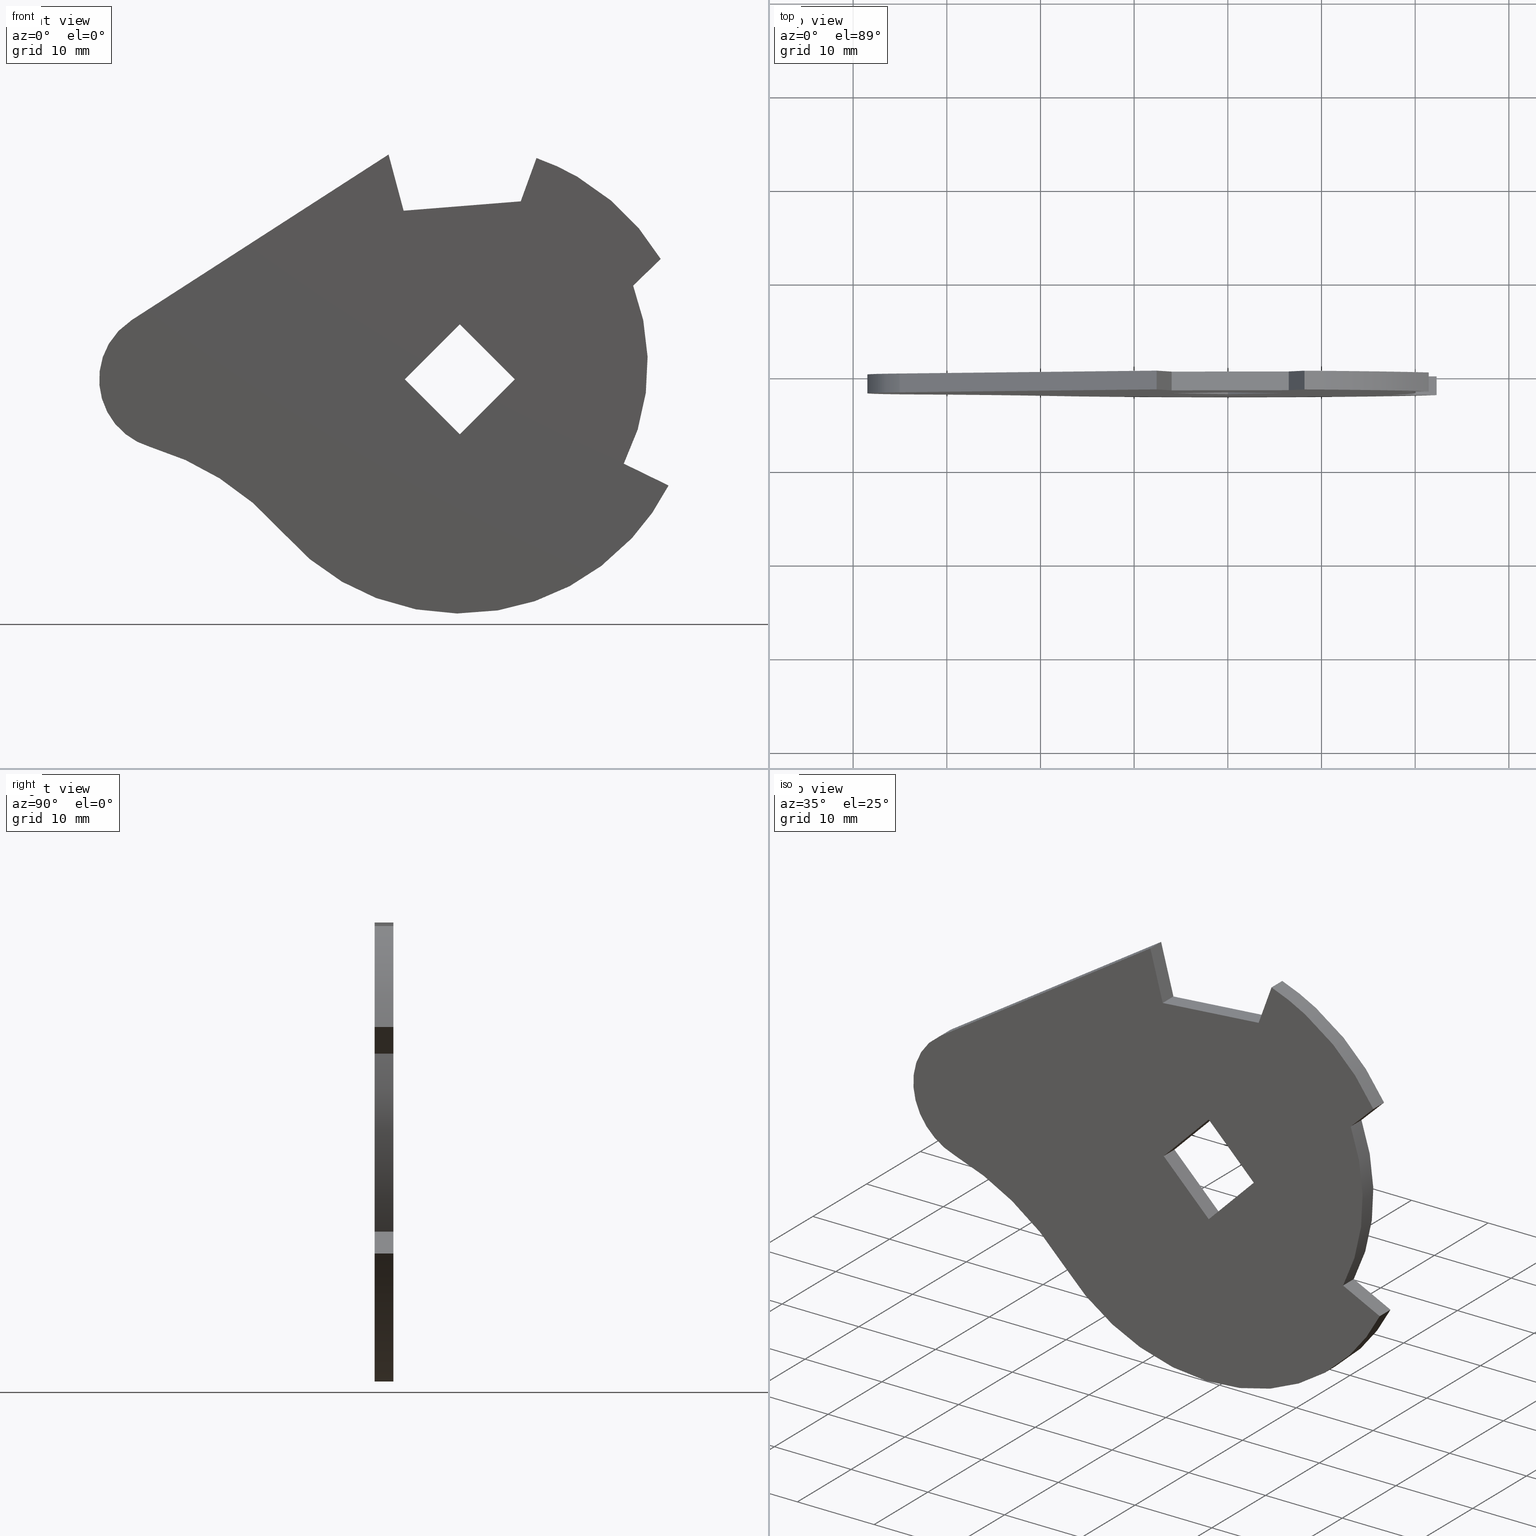
[diagram: canonical four-view strip — front | top / right | iso, engineering-drawing reading convention]
A machine part, canonical four-view strip (front | top / right | iso — engineering-drawing reading convention). The complete STEP part file that produces these views, byte-faithful:
ISO-10303-21;
HEADER;
/****************************************************************
 * Generated by software with PDE/Lib inside                    *
 * PDElib Version 4.4.1-0003, patched  Thursday August 19 11:58 *
 * International Technegroup Inc. (www.iti-oh.com)              *
 ****************************************************************/
FILE_DESCRIPTION((''),'2;1');
FILE_NAME('','2005-10-12T14:38:03',(''),(''),'','CADfix','');
FILE_SCHEMA(('AUTOMOTIVE_DESIGN'));
ENDSEC;
DATA;
#5=APPLICATION_CONTEXT('automotive design');
#6=APPLICATION_PROTOCOL_DEFINITION('Draft International Standard','automotive_design',1998,#5);
#7=PRODUCT_CONTEXT('None',#5,'mechanical');
#8=PRODUCT('cam','','None',(#7));
#9=PRODUCT_RELATED_PRODUCT_CATEGORY('part','description',(#8));
#10=PRODUCT_DEFINITION_FORMATION('None','None',#8);
#11=PRODUCT_DEFINITION_CONTEXT('part definition',#5,'design');
#12=PRODUCT_DEFINITION('None','None',#10,#11);
#18=(NAMED_UNIT(*)PLANE_ANGLE_UNIT()SI_UNIT($,.RADIAN.));
#19=DIMENSIONAL_EXPONENTS(0.0,0.0,0.0,0.0,0.0,0.0,0.0);
#20=PLANE_ANGLE_MEASURE_WITH_UNIT(PLANE_ANGLE_MEASURE(0.017453292500000),#18);
#24=(CONVERSION_BASED_UNIT('DEGREE',#20)NAMED_UNIT(#19)PLANE_ANGLE_UNIT());
#28=(NAMED_UNIT(*)SI_UNIT($,.STERADIAN.)SOLID_ANGLE_UNIT());
#32=(LENGTH_UNIT()NAMED_UNIT(*)SI_UNIT(.MILLI.,.METRE.));
#34=UNCERTAINTY_MEASURE_WITH_UNIT(LENGTH_MEASURE(0.001000000000000),#32,'DISTANCE_ACCURACY_VALUE','');
#36=(GEOMETRIC_REPRESENTATION_CONTEXT(3)GLOBAL_UNCERTAINTY_ASSIGNED_CONTEXT((#34))GLOBAL_UNIT_ASSIGNED_CONTEXT((#24,#28,#32))REPRESENTATION_CONTEXT('None','None'));
#37=AXIS2_PLACEMENT_3D('',#38,#39,#40);
#38=CARTESIAN_POINT('',(0.0,0.0,0.0));
#39=DIRECTION('',(0.0,0.0,1.0));
#40=DIRECTION('',(1.0,0.0,0.0));
#41=ADVANCED_BREP_SHAPE_REPRESENTATION('',(#37,#652),#36);
#42=PRODUCT_DEFINITION_SHAPE('','',#12);
#43=SHAPE_DEFINITION_REPRESENTATION(#42,#41);
#44=CARTESIAN_POINT('',(-41.535127349591320,0.0,26.447485419626780));
#45=CARTESIAN_POINT('',(25.319943420083320,0.0,26.447485419626780));
#46=CARTESIAN_POINT('',(-41.535127349591320,0.0,-27.446195734419138));
#47=CARTESIAN_POINT('',(25.319943420083320,0.0,-27.446195734419138));
#48=B_SPLINE_SURFACE_WITH_KNOTS('',1,1,((#44,#46),(#45,#47)),.UNSPECIFIED.,.F.,.F.,.U.,(2,2),(2,2),(0.0,66.855070769674640),(0.0,53.893681154045922),.UNSPECIFIED.);
#49=CARTESIAN_POINT('',(-18.912305335812551,0.0,-16.349430156952501));
#50=VERTEX_POINT('',#49);
#51=CARTESIAN_POINT('',(-33.121543283682698,0.0,-7.193419501498741));
#52=VERTEX_POINT('',#51);
#53=CARTESIAN_POINT('',(-18.912305335812551,0.0,-16.349430156952501));
#54=CARTESIAN_POINT('',(-24.672926693730464,0.0,-9.685671257501392));
#55=CARTESIAN_POINT('',(-33.121543283682698,0.0,-7.193419501498741));
#63=(BOUNDED_CURVE()B_SPLINE_CURVE(2,(#53,#54,#55),.UNSPECIFIED.,.F.,.U.)CURVE()GEOMETRIC_REPRESENTATION_ITEM()QUASI_UNIFORM_CURVE()RATIONAL_B_SPLINE_CURVE((1.0,0.959505779183390,1.0))REPRESENTATION_ITEM(''));
#64=EDGE_CURVE('',#50,#52,#63,.T.);
#65=ORIENTED_EDGE('',*,*,#64,.T.);
#66=CARTESIAN_POINT('',(-35.029268839974250,0.0,6.325740479597029));
#67=VERTEX_POINT('',#66);
#68=CARTESIAN_POINT('',(-35.029268839974250,0.0,6.325740479597032));
#69=CARTESIAN_POINT('',(-39.100513541276328,0.0,3.732095857407590));
#70=CARTESIAN_POINT('',(-38.426014233238163,0.0,-1.047765702046671));
#71=CARTESIAN_POINT('',(-37.751514925199984,0.0,-5.827627261500933));
#72=CARTESIAN_POINT('',(-33.121543283682698,0.0,-7.193419501498741));
#80=(BOUNDED_CURVE()B_SPLINE_CURVE(2,(#68,#69,#70,#71,#72),.UNSPECIFIED.,.F.,.U.)B_SPLINE_CURVE_WITH_KNOTS((3,2,3),(0.0,0.500000000000000,1.0),.UNSPECIFIED.)CURVE()GEOMETRIC_REPRESENTATION_ITEM()RATIONAL_B_SPLINE_CURVE((1.0,0.840886149082069,1.0,0.840886149082069,1.0))REPRESENTATION_ITEM(''));
#81=EDGE_CURVE('',#67,#52,#80,.T.);
#82=ORIENTED_EDGE('',*,*,#81,.F.);
#83=CARTESIAN_POINT('',(-7.607000000000000,0.0,24.0));
#84=VERTEX_POINT('',#83);
#85=CARTESIAN_POINT('',(-35.029268839974250,0.0,6.325740479597029));
#86=CARTESIAN_POINT('',(-7.607000000000000,0.0,24.0));
#87=QUASI_UNIFORM_CURVE('',1,(#85,#86),.UNSPECIFIED.,.F.,.U.);
#88=EDGE_CURVE('',#67,#84,#87,.T.);
#89=ORIENTED_EDGE('',*,*,#88,.T.);
#90=CARTESIAN_POINT('',(-6.0,0.0,18.0));
#91=VERTEX_POINT('',#90);
#92=CARTESIAN_POINT('',(-7.607000000000000,0.0,24.0));
#93=CARTESIAN_POINT('',(-6.0,0.0,18.0));
#94=QUASI_UNIFORM_CURVE('',1,(#92,#93),.UNSPECIFIED.,.F.,.U.);
#95=EDGE_CURVE('',#84,#91,#94,.T.);
#96=ORIENTED_EDGE('',*,*,#95,.T.);
#97=CARTESIAN_POINT('',(6.500000000000000,0.0,19.0));
#98=VERTEX_POINT('',#97);
#99=CARTESIAN_POINT('',(-6.0,0.0,18.0));
#100=CARTESIAN_POINT('',(6.500000000000000,0.0,19.0));
#101=QUASI_UNIFORM_CURVE('',1,(#99,#100),.UNSPECIFIED.,.F.,.U.);
#102=EDGE_CURVE('',#91,#98,#101,.T.);
#103=ORIENTED_EDGE('',*,*,#102,.T.);
#104=CARTESIAN_POINT('',(8.182980201324261,0.0,23.622845616579198));
#105=VERTEX_POINT('',#104);
#106=CARTESIAN_POINT('',(6.500000000000000,0.0,19.0));
#107=CARTESIAN_POINT('',(8.182980201324261,0.0,23.622845616579198));
#108=QUASI_UNIFORM_CURVE('',1,(#106,#107),.UNSPECIFIED.,.F.,.U.);
#109=EDGE_CURVE('',#98,#105,#108,.T.);
#110=ORIENTED_EDGE('',*,*,#109,.T.);
#111=CARTESIAN_POINT('',(21.447462022705601,0.0,12.845480636574161));
#112=VERTEX_POINT('',#111);
#113=CARTESIAN_POINT('',(21.447462022705590,0.0,12.845480636574150));
#114=CARTESIAN_POINT('',(16.775225539792963,0.0,20.646482199960836));
#115=CARTESIAN_POINT('',(8.182980201324261,0.0,23.622845616579209));
#123=(BOUNDED_CURVE()B_SPLINE_CURVE(2,(#113,#114,#115),.UNSPECIFIED.,.F.,.U.)CURVE()GEOMETRIC_REPRESENTATION_ITEM()QUASI_UNIFORM_CURVE()RATIONAL_B_SPLINE_CURVE((1.0,0.939766338213495,1.0))REPRESENTATION_ITEM(''));
#124=EDGE_CURVE('',#112,#105,#123,.T.);
#125=ORIENTED_EDGE('',*,*,#124,.F.);
#126=CARTESIAN_POINT('',(18.500357144043949,0.0,10.000344786956999));
#127=VERTEX_POINT('',#126);
#128=CARTESIAN_POINT('',(21.447462022705601,0.0,12.845480636574161));
#129=CARTESIAN_POINT('',(18.500357144043949,0.0,10.000344786956999));
#130=QUASI_UNIFORM_CURVE('',1,(#128,#129),.UNSPECIFIED.,.F.,.U.);
#131=EDGE_CURVE('',#112,#127,#130,.T.);
#132=ORIENTED_EDGE('',*,*,#131,.T.);
#133=CARTESIAN_POINT('',(17.500414805350200,0.0,-9.000202269632389));
#134=VERTEX_POINT('',#133);
#135=CARTESIAN_POINT('',(17.500414805350200,0.0,-9.000202269632394));
#136=CARTESIAN_POINT('',(22.241226133301584,0.0,0.276888441157541));
#137=CARTESIAN_POINT('',(18.500357144043939,0.0,10.000344786956990));
#145=(BOUNDED_CURVE()B_SPLINE_CURVE(2,(#135,#136,#137),.UNSPECIFIED.,.F.,.U.)CURVE()GEOMETRIC_REPRESENTATION_ITEM()QUASI_UNIFORM_CURVE()RATIONAL_B_SPLINE_CURVE((1.0,0.913150525690982,1.0))REPRESENTATION_ITEM(''));
#146=EDGE_CURVE('',#134,#127,#145,.T.);
#147=ORIENTED_EDGE('',*,*,#146,.F.);
#148=CARTESIAN_POINT('',(22.283837975185001,0.0,-11.332720992581740));
#149=VERTEX_POINT('',#148);
#150=CARTESIAN_POINT('',(17.500414805350200,0.0,-9.000202269632389));
#151=CARTESIAN_POINT('',(22.283837975185001,0.0,-11.332720992581740));
#152=QUASI_UNIFORM_CURVE('',1,(#150,#151),.UNSPECIFIED.,.F.,.U.);
#153=EDGE_CURVE('',#134,#149,#152,.T.);
#154=ORIENTED_EDGE('',*,*,#153,.T.);
#155=CARTESIAN_POINT('',(-18.912305335812562,0.0,-16.349430156952501));
#156=CARTESIAN_POINT('',(-10.200774324168949,0.0,-26.426735799385476));
#157=CARTESIAN_POINT('',(3.022309094434244,0.0,-24.816479148257720));
#158=CARTESIAN_POINT('',(16.245392513037434,0.0,-23.206222497129971));
#159=CARTESIAN_POINT('',(22.283837975185001,0.0,-11.332720992581750));
#167=(BOUNDED_CURVE()B_SPLINE_CURVE(2,(#155,#156,#157,#158,#159),.UNSPECIFIED.,.F.,.U.)B_SPLINE_CURVE_WITH_KNOTS((3,2,3),(0.0,0.500000000000000,1.0),.UNSPECIFIED.)CURVE()GEOMETRIC_REPRESENTATION_ITEM()RATIONAL_B_SPLINE_CURVE((1.0,0.882534954793417,1.0,0.882534954793417,1.0))REPRESENTATION_ITEM(''));
#168=EDGE_CURVE('',#50,#149,#167,.T.);
#169=ORIENTED_EDGE('',*,*,#168,.F.);
#170=EDGE_LOOP('',(#65,#82,#89,#96,#103,#110,#125,#132,#147,#154,#169));
#171=FACE_OUTER_BOUND('',#170,.T.);
#172=CARTESIAN_POINT('',(0.0,0.0,-5.868999999999900));
#173=VERTEX_POINT('',#172);
#174=CARTESIAN_POINT('',(-5.869000000000000,0.0,0.0));
#175=VERTEX_POINT('',#174);
#176=CARTESIAN_POINT('',(0.0,0.0,-5.868999999999900));
#177=CARTESIAN_POINT('',(-5.869000000000000,0.0,0.0));
#178=QUASI_UNIFORM_CURVE('',1,(#176,#177),.UNSPECIFIED.,.F.,.U.);
#179=EDGE_CURVE('',#173,#175,#178,.T.);
#180=ORIENTED_EDGE('',*,*,#179,.F.);
#181=CARTESIAN_POINT('',(5.869000000000000,0.0,0.0));
#182=VERTEX_POINT('',#181);
#183=CARTESIAN_POINT('',(5.869000000000000,0.0,0.0));
#184=CARTESIAN_POINT('',(0.0,0.0,-5.868999999999900));
#185=QUASI_UNIFORM_CURVE('',1,(#183,#184),.UNSPECIFIED.,.F.,.U.);
#186=EDGE_CURVE('',#182,#173,#185,.T.);
#187=ORIENTED_EDGE('',*,*,#186,.F.);
#188=CARTESIAN_POINT('',(0.0,0.0,5.869000000000100));
#189=VERTEX_POINT('',#188);
#190=CARTESIAN_POINT('',(0.0,0.0,5.869000000000100));
#191=CARTESIAN_POINT('',(5.869000000000000,0.0,0.0));
#192=QUASI_UNIFORM_CURVE('',1,(#190,#191),.UNSPECIFIED.,.F.,.U.);
#193=EDGE_CURVE('',#189,#182,#192,.T.);
#194=ORIENTED_EDGE('',*,*,#193,.F.);
#195=CARTESIAN_POINT('',(-5.869000000000000,0.0,0.0));
#196=CARTESIAN_POINT('',(0.0,0.0,5.869000000000100));
#197=QUASI_UNIFORM_CURVE('',1,(#195,#196),.UNSPECIFIED.,.F.,.U.);
#198=EDGE_CURVE('',#175,#189,#197,.T.);
#199=ORIENTED_EDGE('',*,*,#198,.F.);
#200=EDGE_LOOP('',(#180,#187,#194,#199));
#201=FACE_BOUND('',#200,.T.);
#202=ADVANCED_FACE('',(#171,#201),#48,.T.);
#203=CARTESIAN_POINT('',(-41.535127349591320,-2.0,26.447485419626780));
#204=CARTESIAN_POINT('',(25.319943420083320,-2.0,26.447485419626780));
#205=CARTESIAN_POINT('',(-41.535127349591320,-2.0,-27.446195734419138));
#206=CARTESIAN_POINT('',(25.319943420083320,-2.0,-27.446195734419138));
#207=B_SPLINE_SURFACE_WITH_KNOTS('',1,1,((#203,#205),(#204,#206)),.UNSPECIFIED.,.F.,.F.,.U.,(2,2),(2,2),(0.0,66.855070769674640),(0.0,53.893681154045922),.UNSPECIFIED.);
#208=CARTESIAN_POINT('',(-18.912305335812551,-2.0,-16.349430156952501));
#209=VERTEX_POINT('',#208);
#210=CARTESIAN_POINT('',(-33.121543283682698,-2.0,-7.193419501498741));
#211=VERTEX_POINT('',#210);
#212=CARTESIAN_POINT('',(-18.912305335812551,-2.0,-16.349430156952501));
#213=CARTESIAN_POINT('',(-24.672926693730464,-2.0,-9.685671257501392));
#214=CARTESIAN_POINT('',(-33.121543283682698,-2.0,-7.193419501498741));
#222=(BOUNDED_CURVE()B_SPLINE_CURVE(2,(#212,#213,#214),.UNSPECIFIED.,.F.,.U.)CURVE()GEOMETRIC_REPRESENTATION_ITEM()QUASI_UNIFORM_CURVE()RATIONAL_B_SPLINE_CURVE((1.0,0.959505779183390,1.0))REPRESENTATION_ITEM(''));
#223=EDGE_CURVE('',#209,#211,#222,.T.);
#224=ORIENTED_EDGE('',*,*,#223,.F.);
#225=CARTESIAN_POINT('',(22.283837975185001,-2.0,-11.332720992581740));
#226=VERTEX_POINT('',#225);
#227=CARTESIAN_POINT('',(-18.912305335812562,-2.0,-16.349430156952501));
#228=CARTESIAN_POINT('',(-10.200774324168949,-2.000000000000000,-26.426735799385476));
#229=CARTESIAN_POINT('',(3.022309094434244,-2.0,-24.816479148257720));
#230=CARTESIAN_POINT('',(16.245392513037434,-2.000000000000000,-23.206222497129971));
#231=CARTESIAN_POINT('',(22.283837975185001,-2.0,-11.332720992581750));
#239=(BOUNDED_CURVE()B_SPLINE_CURVE(2,(#227,#228,#229,#230,#231),.UNSPECIFIED.,.F.,.U.)B_SPLINE_CURVE_WITH_KNOTS((3,2,3),(0.0,0.500000000000000,1.0),.UNSPECIFIED.)CURVE()GEOMETRIC_REPRESENTATION_ITEM()RATIONAL_B_SPLINE_CURVE((1.0,0.882534954793417,1.0,0.882534954793417,1.0))REPRESENTATION_ITEM(''));
#240=EDGE_CURVE('',#209,#226,#239,.T.);
#241=ORIENTED_EDGE('',*,*,#240,.T.);
#242=CARTESIAN_POINT('',(17.500414805350200,-2.0,-9.000202269632389));
#243=VERTEX_POINT('',#242);
#244=CARTESIAN_POINT('',(17.500414805350200,-2.0,-9.000202269632389));
#245=CARTESIAN_POINT('',(22.283837975185001,-2.0,-11.332720992581740));
#246=QUASI_UNIFORM_CURVE('',1,(#244,#245),.UNSPECIFIED.,.F.,.U.);
#247=EDGE_CURVE('',#243,#226,#246,.T.);
#248=ORIENTED_EDGE('',*,*,#247,.F.);
#249=CARTESIAN_POINT('',(18.500357144043949,-2.0,10.000344786956999));
#250=VERTEX_POINT('',#249);
#251=CARTESIAN_POINT('',(17.500414805350200,-2.0,-9.000202269632394));
#252=CARTESIAN_POINT('',(22.241226133301584,-2.000000000000000,0.276888441157541));
#253=CARTESIAN_POINT('',(18.500357144043939,-2.0,10.000344786956990));
#261=(BOUNDED_CURVE()B_SPLINE_CURVE(2,(#251,#252,#253),.UNSPECIFIED.,.F.,.U.)CURVE()GEOMETRIC_REPRESENTATION_ITEM()QUASI_UNIFORM_CURVE()RATIONAL_B_SPLINE_CURVE((1.0,0.913150525690982,1.0))REPRESENTATION_ITEM(''));
#262=EDGE_CURVE('',#243,#250,#261,.T.);
#263=ORIENTED_EDGE('',*,*,#262,.T.);
#264=CARTESIAN_POINT('',(21.447462022705601,-2.0,12.845480636574161));
#265=VERTEX_POINT('',#264);
#266=CARTESIAN_POINT('',(21.447462022705601,-2.0,12.845480636574161));
#267=CARTESIAN_POINT('',(18.500357144043949,-2.0,10.000344786956999));
#268=QUASI_UNIFORM_CURVE('',1,(#266,#267),.UNSPECIFIED.,.F.,.U.);
#269=EDGE_CURVE('',#265,#250,#268,.T.);
#270=ORIENTED_EDGE('',*,*,#269,.F.);
#271=CARTESIAN_POINT('',(8.182980201324261,-2.0,23.622845616579198));
#272=VERTEX_POINT('',#271);
#273=CARTESIAN_POINT('',(21.447462022705590,-2.0,12.845480636574150));
#274=CARTESIAN_POINT('',(16.775225539792963,-2.000000000000000,20.646482199960836));
#275=CARTESIAN_POINT('',(8.182980201324261,-2.0,23.622845616579209));
#283=(BOUNDED_CURVE()B_SPLINE_CURVE(2,(#273,#274,#275),.UNSPECIFIED.,.F.,.U.)CURVE()GEOMETRIC_REPRESENTATION_ITEM()QUASI_UNIFORM_CURVE()RATIONAL_B_SPLINE_CURVE((1.0,0.939766338213495,1.0))REPRESENTATION_ITEM(''));
#284=EDGE_CURVE('',#265,#272,#283,.T.);
#285=ORIENTED_EDGE('',*,*,#284,.T.);
#286=CARTESIAN_POINT('',(6.500000000000000,-2.0,19.0));
#287=VERTEX_POINT('',#286);
#288=CARTESIAN_POINT('',(6.500000000000000,-2.0,19.0));
#289=CARTESIAN_POINT('',(8.182980201324261,-2.0,23.622845616579198));
#290=QUASI_UNIFORM_CURVE('',1,(#288,#289),.UNSPECIFIED.,.F.,.U.);
#291=EDGE_CURVE('',#287,#272,#290,.T.);
#292=ORIENTED_EDGE('',*,*,#291,.F.);
#293=CARTESIAN_POINT('',(-6.0,-2.0,18.0));
#294=VERTEX_POINT('',#293);
#295=CARTESIAN_POINT('',(-6.0,-2.0,18.0));
#296=CARTESIAN_POINT('',(6.500000000000000,-2.0,19.0));
#297=QUASI_UNIFORM_CURVE('',1,(#295,#296),.UNSPECIFIED.,.F.,.U.);
#298=EDGE_CURVE('',#294,#287,#297,.T.);
#299=ORIENTED_EDGE('',*,*,#298,.F.);
#300=CARTESIAN_POINT('',(-7.607000000000000,-2.0,24.0));
#301=VERTEX_POINT('',#300);
#302=CARTESIAN_POINT('',(-7.607000000000000,-2.0,24.0));
#303=CARTESIAN_POINT('',(-6.0,-2.0,18.0));
#304=QUASI_UNIFORM_CURVE('',1,(#302,#303),.UNSPECIFIED.,.F.,.U.);
#305=EDGE_CURVE('',#301,#294,#304,.T.);
#306=ORIENTED_EDGE('',*,*,#305,.F.);
#307=CARTESIAN_POINT('',(-35.029268839974250,-2.0,6.325740479597029));
#308=VERTEX_POINT('',#307);
#309=CARTESIAN_POINT('',(-35.029268839974250,-2.0,6.325740479597029));
#310=CARTESIAN_POINT('',(-7.607000000000000,-2.0,24.0));
#311=QUASI_UNIFORM_CURVE('',1,(#309,#310),.UNSPECIFIED.,.F.,.U.);
#312=EDGE_CURVE('',#308,#301,#311,.T.);
#313=ORIENTED_EDGE('',*,*,#312,.F.);
#314=CARTESIAN_POINT('',(-35.029268839974250,-2.0,6.325740479597032));
#315=CARTESIAN_POINT('',(-39.100513541276328,-2.000000000000000,3.732095857407590));
#316=CARTESIAN_POINT('',(-38.426014233238163,-2.0,-1.047765702046671));
#317=CARTESIAN_POINT('',(-37.751514925199984,-2.000000000000000,-5.827627261500933));
#318=CARTESIAN_POINT('',(-33.121543283682698,-2.0,-7.193419501498741));
#326=(BOUNDED_CURVE()B_SPLINE_CURVE(2,(#314,#315,#316,#317,#318),.UNSPECIFIED.,.F.,.U.)B_SPLINE_CURVE_WITH_KNOTS((3,2,3),(0.0,0.500000000000000,1.0),.UNSPECIFIED.)CURVE()GEOMETRIC_REPRESENTATION_ITEM()RATIONAL_B_SPLINE_CURVE((1.0,0.840886149082069,1.0,0.840886149082069,1.0))REPRESENTATION_ITEM(''));
#327=EDGE_CURVE('',#308,#211,#326,.T.);
#328=ORIENTED_EDGE('',*,*,#327,.T.);
#329=EDGE_LOOP('',(#224,#241,#248,#263,#270,#285,#292,#299,#306,#313,#328));
#330=FACE_OUTER_BOUND('',#329,.T.);
#331=CARTESIAN_POINT('',(0.0,-2.0,-5.868999999999900));
#332=VERTEX_POINT('',#331);
#333=CARTESIAN_POINT('',(-5.869000000000000,-2.0,0.0));
#334=VERTEX_POINT('',#333);
#335=CARTESIAN_POINT('',(0.0,-2.0,-5.868999999999900));
#336=CARTESIAN_POINT('',(-5.869000000000000,-2.0,0.0));
#337=QUASI_UNIFORM_CURVE('',1,(#335,#336),.UNSPECIFIED.,.F.,.U.);
#338=EDGE_CURVE('',#332,#334,#337,.T.);
#339=ORIENTED_EDGE('',*,*,#338,.T.);
#340=CARTESIAN_POINT('',(0.0,-2.0,5.869000000000100));
#341=VERTEX_POINT('',#340);
#342=CARTESIAN_POINT('',(-5.869000000000000,-2.0,0.0));
#343=CARTESIAN_POINT('',(0.0,-2.0,5.869000000000100));
#344=QUASI_UNIFORM_CURVE('',1,(#342,#343),.UNSPECIFIED.,.F.,.U.);
#345=EDGE_CURVE('',#334,#341,#344,.T.);
#346=ORIENTED_EDGE('',*,*,#345,.T.);
#347=CARTESIAN_POINT('',(5.869000000000000,-2.0,0.0));
#348=VERTEX_POINT('',#347);
#349=CARTESIAN_POINT('',(0.0,-2.0,5.869000000000100));
#350=CARTESIAN_POINT('',(5.869000000000000,-2.0,0.0));
#351=QUASI_UNIFORM_CURVE('',1,(#349,#350),.UNSPECIFIED.,.F.,.U.);
#352=EDGE_CURVE('',#341,#348,#351,.T.);
#353=ORIENTED_EDGE('',*,*,#352,.T.);
#354=CARTESIAN_POINT('',(5.869000000000000,-2.0,0.0));
#355=CARTESIAN_POINT('',(0.0,-2.0,-5.868999999999900));
#356=QUASI_UNIFORM_CURVE('',1,(#354,#355),.UNSPECIFIED.,.F.,.U.);
#357=EDGE_CURVE('',#348,#332,#356,.T.);
#358=ORIENTED_EDGE('',*,*,#357,.T.);
#359=EDGE_LOOP('',(#339,#346,#353,#358));
#360=FACE_BOUND('',#359,.T.);
#361=ADVANCED_FACE('',(#330,#360),#207,.F.);
#362=CARTESIAN_POINT('',(-19.054258406682859,-2.050000000000000,-16.183766429837441));
#363=CARTESIAN_POINT('',(-19.054258406682859,0.051250000000000,-16.183766429837441));
#364=CARTESIAN_POINT('',(6.845057274677663,-2.050000000000000,-46.677374041093017));
#365=CARTESIAN_POINT('',(6.845057274677663,0.051250000000000,-46.677374041093017));
#366=CARTESIAN_POINT('',(22.899017529566780,-2.050000000000000,-10.031705565181269));
#367=CARTESIAN_POINT('',(22.899017529566780,0.051250000000000,-10.031705565181269));
#375=(BOUNDED_SURFACE()B_SPLINE_SURFACE(1,2,((#362,#364,#366),(#363,#365,#367)),.UNSPECIFIED.,.F.,.F.,.U.)B_SPLINE_SURFACE_WITH_KNOTS((2,2),(3,3),(0.0,2.101250000000000),(0.0,55.430308294917893),.UNSPECIFIED.)GEOMETRIC_REPRESENTATION_ITEM()RATIONAL_B_SPLINE_SURFACE(((1.0,0.529919264233205,1.0),(1.0,0.529919264233205,1.0)))REPRESENTATION_ITEM('')SURFACE());
#376=ORIENTED_EDGE('',*,*,#168,.T.);
#377=CARTESIAN_POINT('',(22.283837975185001,-2.0,-11.332720992581740));
#378=CARTESIAN_POINT('',(22.283837975185001,0.0,-11.332720992581740));
#379=QUASI_UNIFORM_CURVE('',1,(#377,#378),.UNSPECIFIED.,.F.,.U.);
#380=EDGE_CURVE('',#226,#149,#379,.T.);
#381=ORIENTED_EDGE('',*,*,#380,.F.);
#382=ORIENTED_EDGE('',*,*,#240,.F.);
#383=CARTESIAN_POINT('',(-18.912305335812551,-2.0,-16.349430156952501));
#384=CARTESIAN_POINT('',(-18.912305335812551,0.0,-16.349430156952501));
#385=QUASI_UNIFORM_CURVE('',1,(#383,#384),.UNSPECIFIED.,.F.,.U.);
#386=EDGE_CURVE('',#209,#50,#385,.T.);
#387=ORIENTED_EDGE('',*,*,#386,.T.);
#388=EDGE_LOOP('',(#376,#381,#382,#387));
#389=FACE_OUTER_BOUND('',#388,.T.);
#390=ADVANCED_FACE('',(#389),#375,.T.);
#391=CARTESIAN_POINT('',(-6.162156538624739,-2.099899996123612,-0.293156538624744));
#392=CARTESIAN_POINT('',(0.293156696043588,-2.099899996123612,6.162156696043692));
#393=CARTESIAN_POINT('',(-6.162156538624739,0.099900049767792,-0.293156538624744));
#394=CARTESIAN_POINT('',(0.293156696043588,0.099900049767792,6.162156696043691));
#395=B_SPLINE_SURFACE_WITH_KNOTS('',1,1,((#391,#393),(#392,#394)),.UNSPECIFIED.,.F.,.F.,.U.,(2,2),(2,2),(0.0,9.129191525834559),(0.0,2.199800045891404),.UNSPECIFIED.);
#396=ORIENTED_EDGE('',*,*,#198,.T.);
#397=CARTESIAN_POINT('',(0.0,-2.0,5.869000000000100));
#398=CARTESIAN_POINT('',(0.0,0.0,5.869000000000100));
#399=QUASI_UNIFORM_CURVE('',1,(#397,#398),.UNSPECIFIED.,.F.,.U.);
#400=EDGE_CURVE('',#341,#189,#399,.T.);
#401=ORIENTED_EDGE('',*,*,#400,.F.);
#402=ORIENTED_EDGE('',*,*,#345,.F.);
#403=CARTESIAN_POINT('',(-5.869000000000000,-2.0,0.0));
#404=CARTESIAN_POINT('',(-5.869000000000000,0.0,0.0));
#405=QUASI_UNIFORM_CURVE('',1,(#403,#404),.UNSPECIFIED.,.F.,.U.);
#406=EDGE_CURVE('',#334,#175,#405,.T.);
#407=ORIENTED_EDGE('',*,*,#406,.T.);
#408=EDGE_LOOP('',(#396,#401,#402,#407));
#409=FACE_OUTER_BOUND('',#408,.T.);
#410=ADVANCED_FACE('',(#409),#395,.F.);
#411=CARTESIAN_POINT('',(-0.293156538624740,-2.099899996123612,6.162156538624843));
#412=CARTESIAN_POINT('',(6.162156696043594,-2.099899996123612,-0.293156696043582));
#413=CARTESIAN_POINT('',(-0.293156538624740,0.099900049767792,6.162156538624843));
#414=CARTESIAN_POINT('',(6.162156696043594,0.099900049767792,-0.293156696043582));
#415=B_SPLINE_SURFACE_WITH_KNOTS('',1,1,((#411,#413),(#412,#414)),.UNSPECIFIED.,.F.,.F.,.U.,(2,2),(2,2),(0.0,9.129191525834557),(0.0,2.199800045891404),.UNSPECIFIED.);
#416=ORIENTED_EDGE('',*,*,#193,.T.);
#417=CARTESIAN_POINT('',(5.869000000000000,-2.0,0.0));
#418=CARTESIAN_POINT('',(5.869000000000000,0.0,0.0));
#419=QUASI_UNIFORM_CURVE('',1,(#417,#418),.UNSPECIFIED.,.F.,.U.);
#420=EDGE_CURVE('',#348,#182,#419,.T.);
#421=ORIENTED_EDGE('',*,*,#420,.F.);
#422=ORIENTED_EDGE('',*,*,#352,.F.);
#423=ORIENTED_EDGE('',*,*,#400,.T.);
#424=EDGE_LOOP('',(#416,#421,#422,#423));
#425=FACE_OUTER_BOUND('',#424,.T.);
#426=ADVANCED_FACE('',(#425),#415,.F.);
#427=CARTESIAN_POINT('',(6.162156538624739,-2.099899996123612,0.293156538624733));
#428=CARTESIAN_POINT('',(-0.293156696043595,-2.099899996123612,-6.162156696043473));
#429=CARTESIAN_POINT('',(6.162156538624739,0.099900049767792,0.293156538624733));
#430=CARTESIAN_POINT('',(-0.293156696043595,0.099900049767792,-6.162156696043473));
#431=B_SPLINE_SURFACE_WITH_KNOTS('',1,1,((#427,#429),(#428,#430)),.UNSPECIFIED.,.F.,.F.,.U.,(2,2),(2,2),(0.0,9.129191525834402),(0.0,2.199800045891404),.UNSPECIFIED.);
#432=ORIENTED_EDGE('',*,*,#186,.T.);
#433=CARTESIAN_POINT('',(0.0,-2.0,-5.868999999999900));
#434=CARTESIAN_POINT('',(0.0,0.0,-5.868999999999900));
#435=QUASI_UNIFORM_CURVE('',1,(#433,#434),.UNSPECIFIED.,.F.,.U.);
#436=EDGE_CURVE('',#332,#173,#435,.T.);
#437=ORIENTED_EDGE('',*,*,#436,.F.);
#438=ORIENTED_EDGE('',*,*,#357,.F.);
#439=ORIENTED_EDGE('',*,*,#420,.T.);
#440=EDGE_LOOP('',(#432,#437,#438,#439));
#441=FACE_OUTER_BOUND('',#440,.T.);
#442=ADVANCED_FACE('',(#441),#431,.F.);
#443=CARTESIAN_POINT('',(0.293156538624740,-2.099899996123612,-6.162156538624636));
#444=CARTESIAN_POINT('',(-6.162156696043588,-2.099899996123612,0.293156696043581));
#445=CARTESIAN_POINT('',(0.293156538624740,0.099900049767792,-6.162156538624636));
#446=CARTESIAN_POINT('',(-6.162156696043588,0.099900049767792,0.293156696043581));
#447=B_SPLINE_SURFACE_WITH_KNOTS('',1,1,((#443,#445),(#444,#446)),.UNSPECIFIED.,.F.,.F.,.U.,(2,2),(2,2),(0.0,9.129191525834406),(0.0,2.199800045891404),.UNSPECIFIED.);
#448=ORIENTED_EDGE('',*,*,#179,.T.);
#449=ORIENTED_EDGE('',*,*,#406,.F.);
#450=ORIENTED_EDGE('',*,*,#338,.F.);
#451=ORIENTED_EDGE('',*,*,#436,.T.);
#452=EDGE_LOOP('',(#448,#449,#450,#451));
#453=FACE_OUTER_BOUND('',#452,.T.);
#454=ADVANCED_FACE('',(#453),#447,.F.);
#455=CARTESIAN_POINT('',(17.261482019027770,-2.099899996123612,-8.883692569813647));
#456=CARTESIAN_POINT('',(22.522770120000381,-2.099899996123612,-11.449230379585369));
#457=CARTESIAN_POINT('',(17.261482019027770,0.099900049767792,-8.883692569813647));
#458=CARTESIAN_POINT('',(22.522770120000381,0.099900049767792,-11.449230379585369));
#459=B_SPLINE_SURFACE_WITH_KNOTS('',1,1,((#455,#457),(#456,#458)),.UNSPECIFIED.,.F.,.F.,.U.,(2,2),(2,2),(0.0,5.853472194757930),(0.0,2.199800045891404),.UNSPECIFIED.);
#460=ORIENTED_EDGE('',*,*,#153,.F.);
#461=CARTESIAN_POINT('',(17.500414805350200,-2.0,-9.000202269632389));
#462=CARTESIAN_POINT('',(17.500414805350200,0.0,-9.000202269632389));
#463=QUASI_UNIFORM_CURVE('',1,(#461,#462),.UNSPECIFIED.,.F.,.U.);
#464=EDGE_CURVE('',#243,#134,#463,.T.);
#465=ORIENTED_EDGE('',*,*,#464,.F.);
#466=ORIENTED_EDGE('',*,*,#247,.T.);
#467=ORIENTED_EDGE('',*,*,#380,.T.);
#468=EDGE_LOOP('',(#460,#465,#466,#467));
#469=FACE_OUTER_BOUND('',#468,.T.);
#470=ADVANCED_FACE('',(#469),#459,.T.);
#471=CARTESIAN_POINT('',(17.054810097271481,-2.050000000000000,-9.830390841335756));
#472=CARTESIAN_POINT('',(17.054810097271481,0.051250000000000,-9.830390841335756));
#473=CARTESIAN_POINT('',(22.733495384954111,-2.049999999999999,0.255320408776751));
#474=CARTESIAN_POINT('',(22.733495384954111,0.051250000000000,0.255320408776751));
#475=CARTESIAN_POINT('',(18.141274460681064,-2.049999999999999,10.879846045239677));
#476=CARTESIAN_POINT('',(18.141274460681064,0.051250000000000,10.879846045239677));
#484=(BOUNDED_SURFACE()B_SPLINE_SURFACE(1,2,((#471,#473,#475),(#472,#474,#476)),.UNSPECIFIED.,.F.,.F.,.U.)B_SPLINE_SURFACE_WITH_KNOTS((2,2),(3,3),(0.0,2.101250000000000),(0.0,21.877565981152809),.UNSPECIFIED.)GEOMETRIC_REPRESENTATION_ITEM()RATIONAL_B_SPLINE_SURFACE(((0.999677684304771,0.891767126944813,0.991159725809228),(0.999677684304771,0.891767126944813,0.991159725809228)))REPRESENTATION_ITEM('')SURFACE());
#485=ORIENTED_EDGE('',*,*,#146,.T.);
#486=CARTESIAN_POINT('',(18.500357144043949,-2.0,10.000344786956999));
#487=CARTESIAN_POINT('',(18.500357144043949,0.0,10.000344786956999));
#488=QUASI_UNIFORM_CURVE('',1,(#486,#487),.UNSPECIFIED.,.F.,.U.);
#489=EDGE_CURVE('',#250,#127,#488,.T.);
#490=ORIENTED_EDGE('',*,*,#489,.F.);
#491=ORIENTED_EDGE('',*,*,#262,.F.);
#492=ORIENTED_EDGE('',*,*,#464,.T.);
#493=EDGE_LOOP('',(#485,#490,#491,#492));
#494=FACE_OUTER_BOUND('',#493,.T.);
#495=ADVANCED_FACE('',(#494),#484,.T.);
#496=CARTESIAN_POINT('',(21.594670099339869,-2.099899996123612,12.987595353704810));
#497=CARTESIAN_POINT('',(18.353149172806351,-2.099899996123612,9.858230171576341));
#498=CARTESIAN_POINT('',(21.594670099339869,0.099900049767792,12.987595353704810));
#499=CARTESIAN_POINT('',(18.353149172806351,0.099900049767792,9.858230171576341));
#500=B_SPLINE_SURFACE_WITH_KNOTS('',1,1,((#496,#498),(#497,#499)),.UNSPECIFIED.,.F.,.F.,.U.,(2,2),(2,2),(0.0,4.505594784295705),(0.0,2.199800045891404),.UNSPECIFIED.);
#501=ORIENTED_EDGE('',*,*,#131,.F.);
#502=CARTESIAN_POINT('',(21.447462022705601,-2.0,12.845480636574161));
#503=CARTESIAN_POINT('',(21.447462022705601,0.0,12.845480636574161));
#504=QUASI_UNIFORM_CURVE('',1,(#502,#503),.UNSPECIFIED.,.F.,.U.);
#505=EDGE_CURVE('',#265,#112,#504,.T.);
#506=ORIENTED_EDGE('',*,*,#505,.F.);
#507=ORIENTED_EDGE('',*,*,#269,.T.);
#508=ORIENTED_EDGE('',*,*,#489,.T.);
#509=EDGE_LOOP('',(#501,#506,#507,#508));
#510=FACE_OUTER_BOUND('',#509,.T.);
#511=ADVANCED_FACE('',(#510),#500,.T.);
#512=CARTESIAN_POINT('',(21.781660936335580,-2.050000000000000,12.270258630302470));
#513=CARTESIAN_POINT('',(21.781660936335580,0.051250000000000,12.270258630302470));
#514=CARTESIAN_POINT('',(16.891311125709393,-2.050000000000000,20.951407467057390));
#515=CARTESIAN_POINT('',(16.891311125709393,0.051250000000000,20.951407467057390));
#516=CARTESIAN_POINT('',(7.370326010601203,-2.050000000000000,23.888873864153886));
#517=CARTESIAN_POINT('',(7.370326010601203,0.051250000000000,23.888873864153886));
#525=(BOUNDED_SURFACE()B_SPLINE_SURFACE(1,2,((#512,#514,#516),(#513,#515,#517)),.UNSPECIFIED.,.F.,.F.,.U.)B_SPLINE_SURFACE_WITH_KNOTS((2,2),(3,3),(0.0,2.101250000000000),(0.0,19.193447092224581),.UNSPECIFIED.)GEOMETRIC_REPRESENTATION_ITEM()RATIONAL_B_SPLINE_SURFACE(((1.0,0.924995322491587,0.991526371186921),(1.0,0.924995322491587,0.991526371186921)))REPRESENTATION_ITEM('')SURFACE());
#526=ORIENTED_EDGE('',*,*,#124,.T.);
#527=CARTESIAN_POINT('',(8.182980201324261,-2.0,23.622845616579198));
#528=CARTESIAN_POINT('',(8.182980201324261,0.0,23.622845616579198));
#529=QUASI_UNIFORM_CURVE('',1,(#527,#528),.UNSPECIFIED.,.F.,.U.);
#530=EDGE_CURVE('',#272,#105,#529,.T.);
#531=ORIENTED_EDGE('',*,*,#530,.F.);
#532=ORIENTED_EDGE('',*,*,#284,.F.);
#533=ORIENTED_EDGE('',*,*,#505,.T.);
#534=EDGE_LOOP('',(#526,#531,#532,#533));
#535=FACE_OUTER_BOUND('',#534,.T.);
#536=ADVANCED_FACE('',(#535),#525,.T.);
#537=CARTESIAN_POINT('',(6.415935154231368,-2.099899996123612,18.769088903443940));
#538=CARTESIAN_POINT('',(8.267044851481707,-2.099899996123612,23.853756175826270));
#539=CARTESIAN_POINT('',(6.415935154231368,0.099900049767792,18.769088903443940));
#540=CARTESIAN_POINT('',(8.267044851481707,0.099900049767792,23.853756175826270));
#541=B_SPLINE_SURFACE_WITH_KNOTS('',1,1,((#537,#539),(#538,#540)),.UNSPECIFIED.,.F.,.F.,.U.,(2,2),(2,2),(0.0,5.411141134926175),(0.0,2.199800045891404),.UNSPECIFIED.);
#542=ORIENTED_EDGE('',*,*,#109,.F.);
#543=CARTESIAN_POINT('',(6.500000000000000,-2.0,19.0));
#544=CARTESIAN_POINT('',(6.500000000000000,0.0,19.0));
#545=QUASI_UNIFORM_CURVE('',1,(#543,#544),.UNSPECIFIED.,.F.,.U.);
#546=EDGE_CURVE('',#287,#98,#545,.T.);
#547=ORIENTED_EDGE('',*,*,#546,.F.);
#548=ORIENTED_EDGE('',*,*,#291,.T.);
#549=ORIENTED_EDGE('',*,*,#530,.T.);
#550=EDGE_LOOP('',(#542,#547,#548,#549));
#551=FACE_OUTER_BOUND('',#550,.T.);
#552=ADVANCED_FACE('',(#551),#541,.T.);
#553=CARTESIAN_POINT('',(-6.624374975772577,-2.099899996123612,17.950050001938191));
#554=CARTESIAN_POINT('',(7.124375311048704,-2.099899996123612,19.049950024883891));
#555=CARTESIAN_POINT('',(-6.624374975772576,0.099900049767792,17.950050001938191));
#556=CARTESIAN_POINT('',(7.124375311048704,0.099900049767792,19.049950024883891));
#557=B_SPLINE_SURFACE_WITH_KNOTS('',1,1,((#553,#555),(#554,#556)),.UNSPECIFIED.,.F.,.F.,.U.,(2,2),(2,2),(0.0,13.792676118500150),(0.0,2.199800045891404),.UNSPECIFIED.);
#558=ORIENTED_EDGE('',*,*,#102,.F.);
#559=CARTESIAN_POINT('',(-6.0,-2.0,18.0));
#560=CARTESIAN_POINT('',(-6.0,0.0,18.0));
#561=QUASI_UNIFORM_CURVE('',1,(#559,#560),.UNSPECIFIED.,.F.,.U.);
#562=EDGE_CURVE('',#294,#91,#561,.T.);
#563=ORIENTED_EDGE('',*,*,#562,.F.);
#564=ORIENTED_EDGE('',*,*,#298,.T.);
#565=ORIENTED_EDGE('',*,*,#546,.T.);
#566=EDGE_LOOP('',(#558,#563,#564,#565));
#567=FACE_OUTER_BOUND('',#566,.T.);
#568=ADVANCED_FACE('',(#567),#557,.T.);
#569=CARTESIAN_POINT('',(-7.687269646885325,-2.099899996123612,24.299699988370840));
#570=CARTESIAN_POINT('',(-5.919730310011581,-2.099899996123612,17.700299850696620));
#571=CARTESIAN_POINT('',(-7.687269646885325,0.099900049767792,24.299699988370840));
#572=CARTESIAN_POINT('',(-5.919730310011581,0.099900049767792,17.700299850696620));
#573=B_SPLINE_SURFACE_WITH_KNOTS('',1,1,((#569,#571),(#570,#572)),.UNSPECIFIED.,.F.,.F.,.U.,(2,2),(2,2),(0.0,6.832003914264877),(0.0,2.199800045891404),.UNSPECIFIED.);
#574=ORIENTED_EDGE('',*,*,#95,.F.);
#575=CARTESIAN_POINT('',(-7.607000000000000,-2.0,24.0));
#576=CARTESIAN_POINT('',(-7.607000000000000,0.0,24.0));
#577=QUASI_UNIFORM_CURVE('',1,(#575,#576),.UNSPECIFIED.,.F.,.U.);
#578=EDGE_CURVE('',#301,#84,#577,.T.);
#579=ORIENTED_EDGE('',*,*,#578,.F.);
#580=ORIENTED_EDGE('',*,*,#305,.T.);
#581=ORIENTED_EDGE('',*,*,#562,.T.);
#582=EDGE_LOOP('',(#574,#579,#580,#581));
#583=FACE_OUTER_BOUND('',#582,.T.);
#584=ADVANCED_FACE('',(#583),#573,.T.);
#585=CARTESIAN_POINT('',(-36.399012145063843,-2.099899996123611,5.442910587155839));
#586=CARTESIAN_POINT('',(-6.237256940084643,-2.099899996123611,24.882829734421090));
#587=CARTESIAN_POINT('',(-36.399012145063843,0.099900049767792,5.442910587155839));
#588=CARTESIAN_POINT('',(-6.237256940084643,0.099900049767792,24.882829734421090));
#589=B_SPLINE_SURFACE_WITH_KNOTS('',1,1,((#585,#587),(#586,#588)),.UNSPECIFIED.,.F.,.F.,.U.,(2,2),(2,2),(0.0,35.883727976581532),(0.0,2.199800045891403),.UNSPECIFIED.);
#590=ORIENTED_EDGE('',*,*,#88,.F.);
#591=CARTESIAN_POINT('',(-35.029268839974250,-2.0,6.325740479597029));
#592=CARTESIAN_POINT('',(-35.029268839974250,0.0,6.325740479597029));
#593=QUASI_UNIFORM_CURVE('',1,(#591,#592),.UNSPECIFIED.,.F.,.U.);
#594=EDGE_CURVE('',#308,#67,#593,.T.);
#595=ORIENTED_EDGE('',*,*,#594,.F.);
#596=ORIENTED_EDGE('',*,*,#312,.T.);
#597=ORIENTED_EDGE('',*,*,#578,.T.);
#598=EDGE_LOOP('',(#590,#595,#596,#597));
#599=FACE_OUTER_BOUND('',#598,.T.);
#600=ADVANCED_FACE('',(#599),#589,.T.);
#601=CARTESIAN_POINT('',(-34.756855150746588,-2.050000000000000,6.491254248273785));
#602=CARTESIAN_POINT('',(-34.756855150746588,0.051250000000000,6.491254248273785));
#603=CARTESIAN_POINT('',(-39.218026205024110,-2.050000000000000,3.908895117170343));
#604=CARTESIAN_POINT('',(-39.218026205024110,0.051250000000000,3.908895117170343));
#605=CARTESIAN_POINT('',(-38.405926989331903,-2.050000000000000,-1.181401605162165));
#606=CARTESIAN_POINT('',(-38.405926989331903,0.051250000000000,-1.181401605162165));
#607=CARTESIAN_POINT('',(-37.593827773639674,-2.050000000000000,-6.271698327494666));
#608=CARTESIAN_POINT('',(-37.593827773639674,0.051250000000000,-6.271698327494666));
#609=CARTESIAN_POINT('',(-32.550596057852232,-2.050000000000000,-7.337737594310148));
#610=CARTESIAN_POINT('',(-32.550596057852232,0.051250000000000,-7.337737594310148));
#618=(BOUNDED_SURFACE()B_SPLINE_SURFACE(1,2,((#601,#603,#605,#607,#609),(#602,#604,#606,#608,#610)),.UNSPECIFIED.,.F.,.F.,.U.)B_SPLINE_SURFACE_WITH_KNOTS((2,2),(3,2,3),(0.0,2.101250000000000),(0.0,9.315361647472562,18.630723294945120),.UNSPECIFIED.)GEOMETRIC_REPRESENTATION_ITEM()RATIONAL_B_SPLINE_SURFACE(((1.0,0.824126188622016,1.0,0.824126188622016,1.0),(1.0,0.824126188622016,1.0,0.824126188622016,1.0)))REPRESENTATION_ITEM('')SURFACE());
#619=ORIENTED_EDGE('',*,*,#81,.T.);
#620=CARTESIAN_POINT('',(-33.121543283682698,-2.0,-7.193419501498741));
#621=CARTESIAN_POINT('',(-33.121543283682698,0.0,-7.193419501498741));
#622=QUASI_UNIFORM_CURVE('',1,(#620,#621),.UNSPECIFIED.,.F.,.U.);
#623=EDGE_CURVE('',#211,#52,#622,.T.);
#624=ORIENTED_EDGE('',*,*,#623,.F.);
#625=ORIENTED_EDGE('',*,*,#327,.F.);
#626=ORIENTED_EDGE('',*,*,#594,.T.);
#627=EDGE_LOOP('',(#619,#624,#625,#626));
#628=FACE_OUTER_BOUND('',#627,.T.);
#629=ADVANCED_FACE('',(#628),#618,.T.);
#630=CARTESIAN_POINT('',(-18.741936013806509,-2.050000000000000,-16.548256526413471));
#631=CARTESIAN_POINT('',(-18.741936013806509,0.051250000000000,-16.548256526413471));
#632=CARTESIAN_POINT('',(-24.835522667806082,-2.049999999999999,-9.373725636936120));
#633=CARTESIAN_POINT('',(-24.835522667806082,0.051250000000000,-9.373725636936120));
#634=CARTESIAN_POINT('',(-33.935378088640775,-2.050000000000000,-6.965754890898775));
#635=CARTESIAN_POINT('',(-33.935378088640775,0.051250000000000,-6.965754890898775));
#643=(BOUNDED_SURFACE()B_SPLINE_SURFACE(1,2,((#630,#632,#634),(#631,#633,#635)),.UNSPECIFIED.,.F.,.F.,.U.)B_SPLINE_SURFACE_WITH_KNOTS((2,2),(3,3),(0.0,2.101250000000000),(0.0,18.384359908101871),.UNSPECIFIED.)GEOMETRIC_REPRESENTATION_ITEM()RATIONAL_B_SPLINE_SURFACE(((1.0,0.952663001620978,0.996892489561101),(1.0,0.952663001620978,0.996892489561101)))REPRESENTATION_ITEM('')SURFACE());
#644=ORIENTED_EDGE('',*,*,#64,.F.);
#645=ORIENTED_EDGE('',*,*,#386,.F.);
#646=ORIENTED_EDGE('',*,*,#223,.T.);
#647=ORIENTED_EDGE('',*,*,#623,.T.);
#648=EDGE_LOOP('',(#644,#645,#646,#647));
#649=FACE_OUTER_BOUND('',#648,.T.);
#650=ADVANCED_FACE('',(#649),#643,.F.);
#651=CLOSED_SHELL('',(#202,#361,#390,#410,#426,#442,#454,#470,#495,#511,#536,#552,#568,#584,#600,#629,#650));
#652=MANIFOLD_SOLID_BREP('cam',#651);
#658=(NAMED_UNIT(*)PLANE_ANGLE_UNIT()SI_UNIT($,.RADIAN.));
#659=DIMENSIONAL_EXPONENTS(0.0,0.0,0.0,0.0,0.0,0.0,0.0);
#660=PLANE_ANGLE_MEASURE_WITH_UNIT(PLANE_ANGLE_MEASURE(0.017453292500000),#658);
#664=(CONVERSION_BASED_UNIT('DEGREE',#660)NAMED_UNIT(#659)PLANE_ANGLE_UNIT());
#668=(NAMED_UNIT(*)SI_UNIT($,.STERADIAN.)SOLID_ANGLE_UNIT());
#672=(LENGTH_UNIT()NAMED_UNIT(*)SI_UNIT(.MILLI.,.METRE.));
#674=UNCERTAINTY_MEASURE_WITH_UNIT(LENGTH_MEASURE(0.001000000000000),#672,'DISTANCE_ACCURACY_VALUE','');
#676=(GEOMETRIC_REPRESENTATION_CONTEXT(3)GLOBAL_UNCERTAINTY_ASSIGNED_CONTEXT((#674))GLOBAL_UNIT_ASSIGNED_CONTEXT((#664,#668,#672))REPRESENTATION_CONTEXT('','3D'));
ENDSEC;
END-ISO-10303-21;
